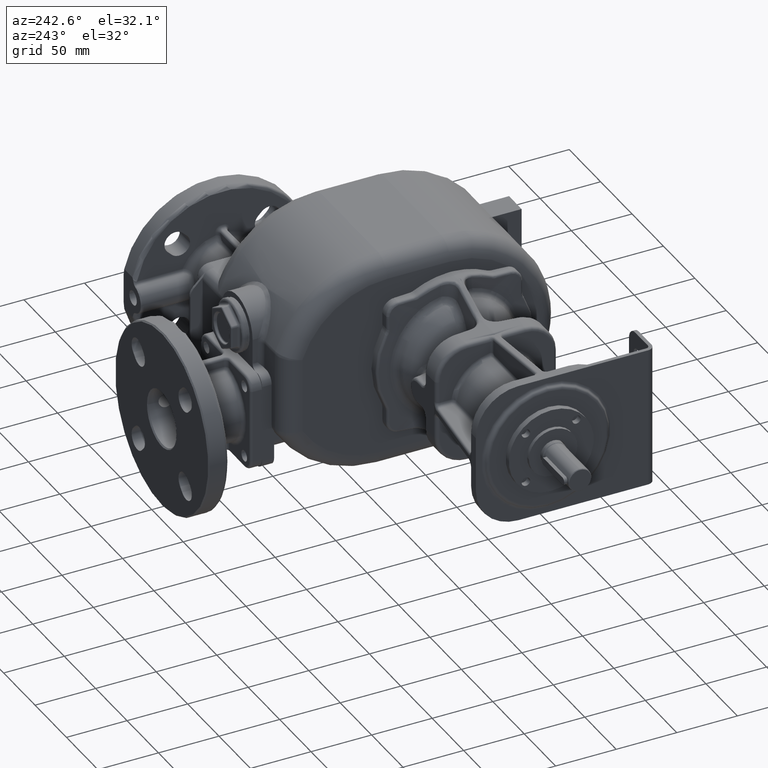
[diagram: clean part render]
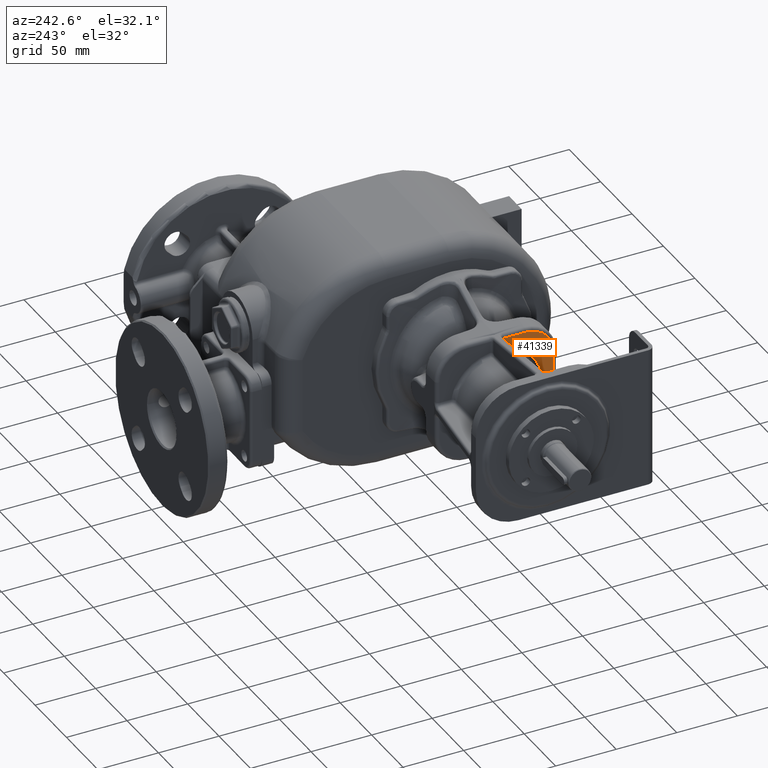
[diagram: same view with one face highlighted and labeled with its STEP entity id]
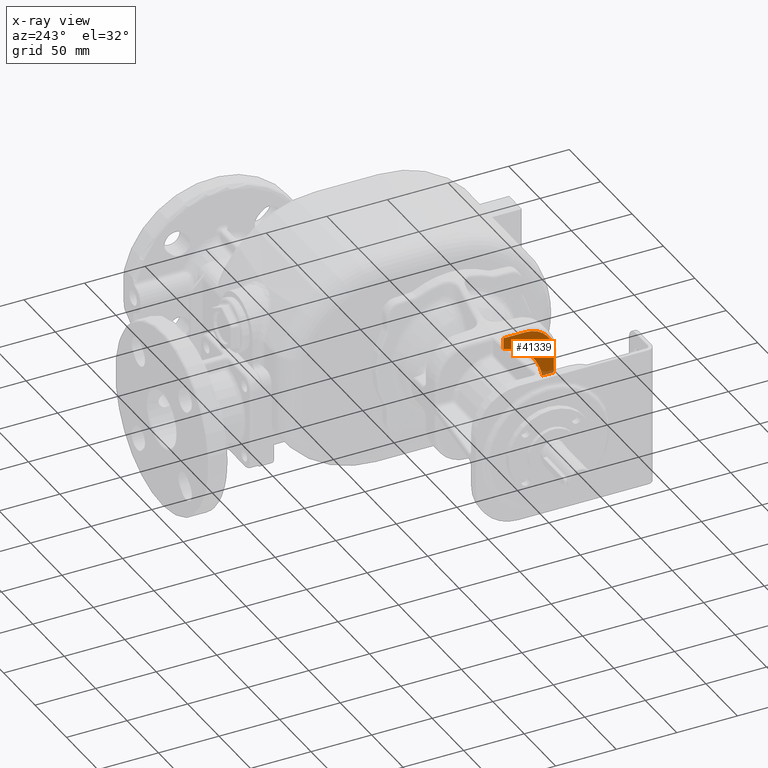
[diagram: x-ray of the same camera — body ghosted, the highlighted face saturated]
A machine part, auxiliary view. The second image highlights one B-rep face of the part: STEP entity #41339.
The next image is the same camera in x-ray: the body ghosted, the highlighted face saturated — about 3% of this face is hidden behind the body in this view.
In plain terms, the highlighted planar face has unit normal (1, 0, 0).
Its self-contained STEP definition (entity closure, byte-faithful):
#11628=DIRECTION('',(-6.477578772357E-10,1.E0,0.E0));
#11629=VECTOR('',#11628,9.400132980143E0);
#11630=CARTESIAN_POINT('',(-1.438E2,4.3E1,5.5E0));
#11631=LINE('',#11630,#11629);
#11632=DIRECTION('',(6.477639243225E-10,0.E0,1.E0));
#11633=VECTOR('',#11632,9.400132980142E0);
#11634=CARTESIAN_POINT('',(-1.438000000061E2,8.45E1,3.759986701986E1));
#11635=LINE('',#11634,#11633);
#11636=DIRECTION('',(0.E0,1.E0,0.E0));
#11637=VECTOR('',#11636,1.85E1);
#11638=CARTESIAN_POINT('',(-1.438E2,6.6E1,4.7E1));
#11639=LINE('',#11638,#11637);
#11640=CARTESIAN_POINT('',(-1.438E2,6.6E1,2.4E1));
#11641=DIRECTION('',(-1.E0,0.E0,0.E0));
#11642=DIRECTION('',(0.E0,-1.E0,0.E0));
#11643=AXIS2_PLACEMENT_3D('',#11640,#11641,#11642);
#11645=DIRECTION('',(0.E0,0.E0,1.E0));
#11646=VECTOR('',#11645,1.85E1);
#11647=CARTESIAN_POINT('',(-1.438E2,4.3E1,5.5E0));
#11648=LINE('',#11647,#11646);
#17529=CARTESIAN_POINT('',(-1.438000000061E2,5.240013298014E1,5.5E0));
#17602=CARTESIAN_POINT('',(-1.438E2,9.E1,0.E0));
#17603=DIRECTION('',(1.E0,0.E0,0.E0));
#17604=DIRECTION('',(0.E0,-1.447368421231E-1,9.894701847616E-1));
#17605=AXIS2_PLACEMENT_3D('',#17602,#17603,#17604);
#25571=CARTESIAN_POINT('',(-1.438E2,4.3E1,2.4E1));
#25572=CARTESIAN_POINT('',(-1.438E2,6.6E1,4.7E1));
#25573=VERTEX_POINT('',#25571);
#25574=VERTEX_POINT('',#25572);
#25666=VERTEX_POINT('',#17529);
#25667=CARTESIAN_POINT('',(-1.438E2,4.3E1,5.5E0));
#25668=VERTEX_POINT('',#25667);
#25739=CARTESIAN_POINT('',(-1.438000000061E2,8.45E1,3.759986701986E1));
#25740=CARTESIAN_POINT('',(-1.438E2,8.45E1,4.7E1));
#25741=VERTEX_POINT('',#25739);
#25742=VERTEX_POINT('',#25740);
#41321=CARTESIAN_POINT('',(-1.438E2,9.E1,0.E0));
#41322=DIRECTION('',(1.E0,0.E0,0.E0));
#41323=DIRECTION('',(0.E0,0.E0,1.E0));
#41324=AXIS2_PLACEMENT_3D('',#41321,#41322,#41323);
#41325=PLANE('',#41324);
#41327=ORIENTED_EDGE('',*,*,#41326,.T.);
#41329=ORIENTED_EDGE('',*,*,#41328,.F.);
#41331=ORIENTED_EDGE('',*,*,#41330,.T.);
#41333=ORIENTED_EDGE('',*,*,#41332,.F.);
#41334=ORIENTED_EDGE('',*,*,#41311,.F.);
#41336=ORIENTED_EDGE('',*,*,#41335,.F.);
#41337=EDGE_LOOP('',(#41327,#41329,#41331,#41333,#41334,#41336));
#41338=FACE_OUTER_BOUND('',#41337,.F.);
#41339=ADVANCED_FACE('',(#41338),#41325,.F.);
#11644=CIRCLE('',#11643,2.3E1);
#17606=CIRCLE('',#17605,3.8E1);
#41311=EDGE_CURVE('',#25573,#25574,#11644,.T.);
#41326=EDGE_CURVE('',#25668,#25666,#11631,.T.);
#41328=EDGE_CURVE('',#25741,#25666,#17606,.T.);
#41330=EDGE_CURVE('',#25741,#25742,#11635,.T.);
#41332=EDGE_CURVE('',#25574,#25742,#11639,.T.);
#41335=EDGE_CURVE('',#25668,#25573,#11648,.T.);